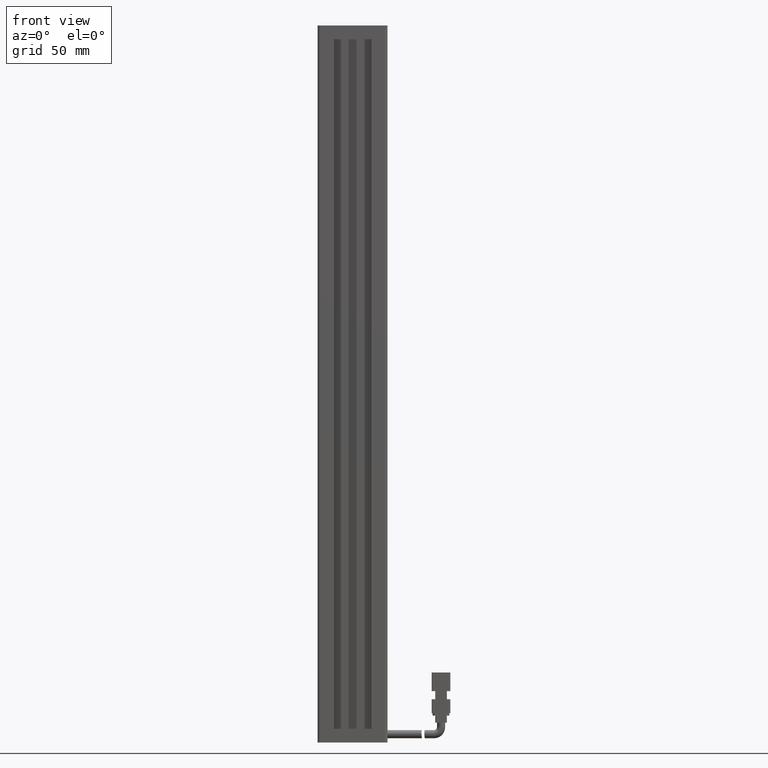
[diagram: clean part render]
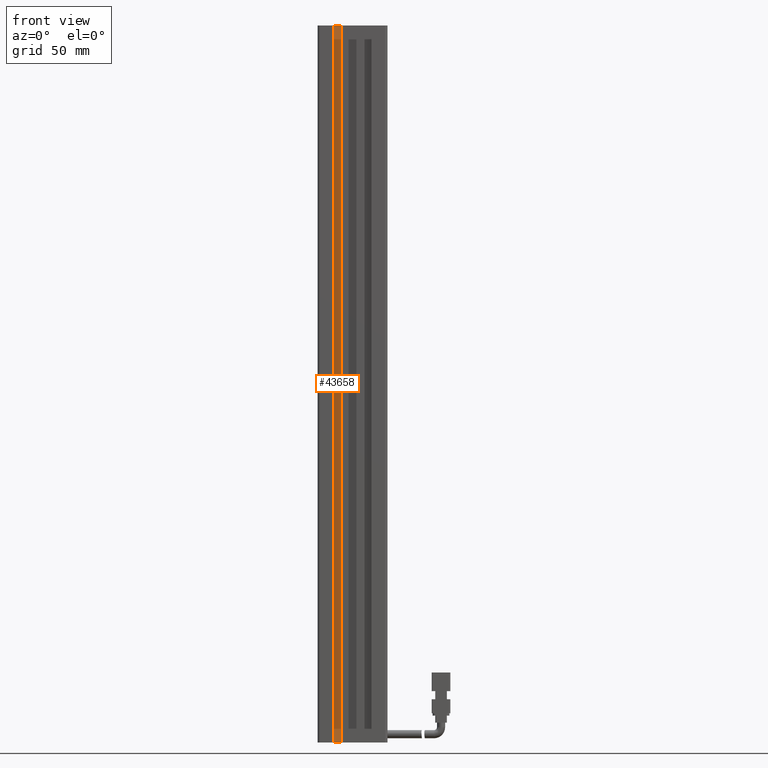
[diagram: same view with one face highlighted and labeled with its STEP entity id]
A machine part, front view. The second image highlights one B-rep face of the part: STEP entity #43658.
In plain terms, the highlighted planar face has unit normal (0, 1, 0).
Its self-contained STEP definition (entity closure, byte-faithful):
#2177 = LINE ( 'NONE', #11913, #13339 ) ;
#3790 = ORIENTED_EDGE ( 'NONE', *, *, #27744, .F. ) ;
#4155 = ORIENTED_EDGE ( 'NONE', *, *, #9902, .T. ) ;
#4336 = VERTEX_POINT ( 'NONE', #13869 ) ;
#9902 = EDGE_CURVE ( 'NONE', #34150, #32644, #36677, .T. ) ;
#11913 = CARTESIAN_POINT ( 'NONE',  ( 32.92537974683543200, 16.19594479660386500, 38.99999999999999300 ) ) ;
#13339 = VECTOR ( 'NONE', #49842, 1000.000000000000000 ) ;
#13597 = CARTESIAN_POINT ( 'NONE',  ( 40.92537974683542500, 16.19594479660386500, 38.99999999999999300 ) ) ;
#13869 = CARTESIAN_POINT ( 'NONE',  ( 32.92537974683543200, 16.19594479660386500, 38.99999999999999300 ) ) ;
#18377 = DIRECTION ( 'NONE',  ( 0.0000000000000000000, -0.0000000000000000000, 1.000000000000000000 ) ) ;
#19087 = ORIENTED_EDGE ( 'NONE', *, *, #41853, .F. ) ;
#20167 = CARTESIAN_POINT ( 'NONE',  ( 35.92537974683543200, 16.19594479660386500, -269.0000000000000000 ) ) ;
#20565 = ORIENTED_EDGE ( 'NONE', *, *, #40795, .F. ) ;
#24051 = VECTOR ( 'NONE', #49959, 1000.000000000000000 ) ;
#27744 = EDGE_CURVE ( 'NONE', #34150, #4336, #2177, .T. ) ;
#30794 = CARTESIAN_POINT ( 'NONE',  ( 35.92537974683543200, 16.19594479660386500, 38.99999999999999300 ) ) ;
#32181 = VERTEX_POINT ( 'NONE', #30794 ) ;
#32644 = VERTEX_POINT ( 'NONE', #20167 ) ;
#33641 = FACE_OUTER_BOUND ( 'NONE', #39924, .T. ) ;
#34150 = VERTEX_POINT ( 'NONE', #46425 ) ;
#36677 = LINE ( 'NONE', #45167, #24051 ) ;
#37028 = PLANE ( 'NONE',  #40438 ) ;
#37077 = CARTESIAN_POINT ( 'NONE',  ( 40.92537974683542500, 16.19594479660386500, 38.99999999999999300 ) ) ;
#38081 = VECTOR ( 'NONE', #60685, 1000.000000000000000 ) ;
#39521 = LINE ( 'NONE', #37077, #38081 ) ;
#39924 = EDGE_LOOP ( 'NONE', ( #19087, #20565, #3790, #4155 ) ) ;
#40438 = AXIS2_PLACEMENT_3D ( 'NONE', #13597, #46699, #18377 ) ;
#40795 = EDGE_CURVE ( 'NONE', #4336, #32181, #39521, .T. ) ;
#41853 = EDGE_CURVE ( 'NONE', #32181, #32644, #53303, .T. ) ;
#43658 = ADVANCED_FACE ( 'NONE', ( #33641 ), #37028, .F. ) ;
#45167 = CARTESIAN_POINT ( 'NONE',  ( 40.92537974683542500, 16.19594479660386500, -269.0000000000000000 ) ) ;
#46425 = CARTESIAN_POINT ( 'NONE',  ( 32.92537974683543200, 16.19594479660386500, -269.0000000000000000 ) ) ;
#46699 = DIRECTION ( 'NONE',  ( 0.0000000000000000000, 1.000000000000000000, 0.0000000000000000000 ) ) ;
#49842 = DIRECTION ( 'NONE',  ( 0.0000000000000000000, -0.0000000000000000000, 1.000000000000000000 ) ) ;
#49959 = DIRECTION ( 'NONE',  ( 1.000000000000000000, 0.0000000000000000000, 0.0000000000000000000 ) ) ;
#51819 = VECTOR ( 'NONE', #59064, 1000.000000000000000 ) ;
#53303 = LINE ( 'NONE', #54297, #51819 ) ;
#54297 = CARTESIAN_POINT ( 'NONE',  ( 35.92537974683543200, 16.19594479660386500, 38.99999999999999300 ) ) ;
#59064 = DIRECTION ( 'NONE',  ( -0.0000000000000000000, -0.0000000000000000000, -1.000000000000000000 ) ) ;
#60685 = DIRECTION ( 'NONE',  ( 1.000000000000000000, 0.0000000000000000000, 0.0000000000000000000 ) ) ;